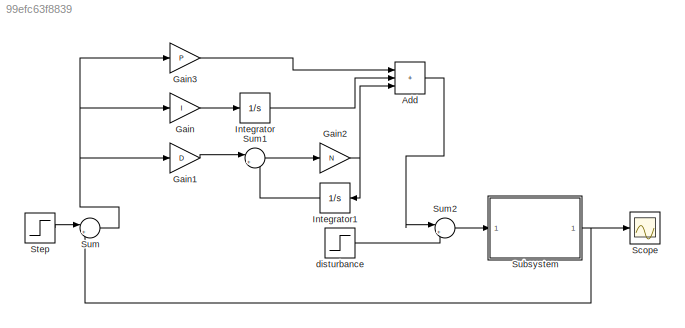
MODEL slx_99efc63f8839
KIND model
CONFIG AbsTol = auto
CONFIG EnableMultiTasking = off
CONFIG FixedStep = auto
CONFIG MaxStep = auto
CONFIG MinStep = auto
CONFIG RelTol = 1e-3
CONFIG SampleTimeConstraint = Unconstrained
CONFIG Solver = ode15s
CONFIG SolverName = ode15s
CONFIG StartTime = 0.0
CONFIG StopTime = 0.2
BLOCK [Sum] Add
  IconShape = rectangular
  Inputs = +++
  Ports = [3, 1]
BLOCK [Gain] Gain
  Gain = I
BLOCK [Gain] Gain1
  Gain = D
BLOCK [Gain] Gain2
  Gain = N
BLOCK [Gain] Gain3
  Gain = P
BLOCK [Integrator] Integrator
  Ports = [1, 1]
BLOCK [Integrator] Integrator1
  NameLocation = top
  Ports = [1, 1]
BLOCK [Scope] Scope
  Floating = off
  NumInputPorts = 1
  Ports = [1]
  ScopeSpecificationString = Simulink.scopes.TimeScopeBlockCfg('CurrentConfiguration', extmgr.ConfigurationSet(extmgr.Configuration('Core','General UI',true),extmgr.Configuration('Core','Source UI',true),extmgr.Configuration('Sources','WiredSimulink',true),extmgr.Configuration('Visuals','Time Domain',true,'SerializedDisplays',{struct('MinYLimReal','-0.14101','MaxYLimReal','1.26912','YLabelReal','','MinYLimMag','0.00000','MaxY...<+1358ch>
BLOCK [Step] Step
  SampleTime = 0
  Time = 0
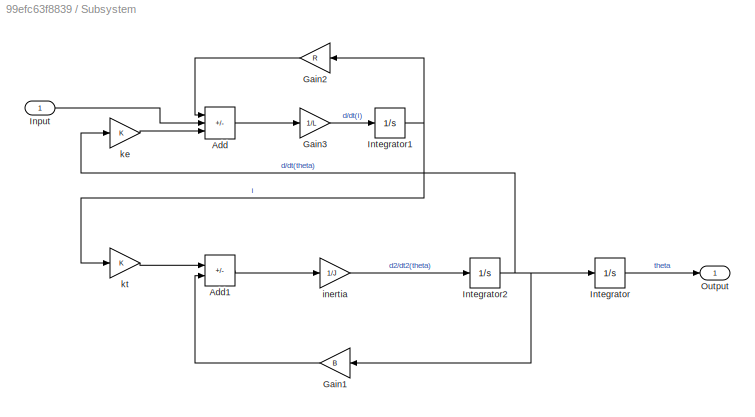
BLOCK [SubSystem] Subsystem
  Ports = [1, 1]
  RequestExecContextInheritance = off
BLOCK [Sum] Subsystem/Add
  IconShape = rectangular
  Inputs = -+-
  Ports = [3, 1]
BLOCK [Sum] Subsystem/Add1
  IconShape = rectangular
  Inputs = +-
  Ports = [2, 1]
BLOCK [Gain] Subsystem/Gain1
  Gain = B
  NameLocation = top
BLOCK [Gain] Subsystem/Gain2
  Gain = R
  NameLocation = top
BLOCK [Gain] Subsystem/Gain3
  Gain = 1/L
BLOCK [Inport] Subsystem/Input
BLOCK [Integrator] Subsystem/Integrator
  Ports = [1, 1]
BLOCK [Integrator] Subsystem/Integrator1
  Ports = [1, 1]
BLOCK [Integrator] Subsystem/Integrator2
  Ports = [1, 1]
BLOCK [Outport] Subsystem/Output
BLOCK [Gain] Subsystem/inertia
  Gain = 1/J
BLOCK [Gain] Subsystem/ke
  Gain = K
BLOCK [Gain] Subsystem/kt
  Gain = K
BLOCK [Sum] Sum
  Inputs = |+-
  Ports = [2, 1]
BLOCK [Sum] Sum1
  Inputs = |+-
  Ports = [2, 1]
BLOCK [Sum] Sum2
  Inputs = |++
  Ports = [2, 1]
BLOCK [Step] disturbance
  SampleTime = 0
  Time = 0.03
LINE Add:1 -> Sum2:1
LINE Gain1:1 -> Sum1:1
NET Gain2:1 -> Add:3, Integrator1:1
LINE Gain3:1 -> Add:1
LINE Gain:1 -> Integrator:1
LINE Integrator1:1 -> Sum1:2
LINE Integrator:1 -> Add:2
LINE Step:1 -> Sum:1
LINE Subsystem/Add1:1 -> Subsystem/inertia:1
LINE Subsystem/Add:1 -> Subsystem/Gain3:1
LINE Subsystem/Gain1:1 -> Subsystem/Add1:2
LINE Subsystem/Gain2:1 -> Subsystem/Add:1
LINE Subsystem/Gain3:1 -> Subsystem/Integrator1:1
LINE Subsystem/Input:1 -> Subsystem/Add:2
NET Subsystem/Integrator1:1 -> Subsystem/Gain2:1, Subsystem/kt:1
NET Subsystem/Integrator2:1 -> Subsystem/Gain1:1, Subsystem/Integrator:1, Subsystem/ke:1
LINE Subsystem/Integrator:1 -> Subsystem/Output:1
LINE Subsystem/inertia:1 -> Subsystem/Integrator2:1
LINE Subsystem/ke:1 -> Subsystem/Add:3
LINE Subsystem/kt:1 -> Subsystem/Add1:1
NET Subsystem:1 -> Scope:1, Sum:2
LINE Sum1:1 -> Gain2:1
LINE Sum2:1 -> Subsystem:1
NET Sum:1 -> Gain1:1, Gain3:1, Gain:1
LINE disturbance:1 -> Sum2:2
note: NET lines group one-source signal fan-out (src -> all destinations, sorted); 1:1 wires keep LINE
